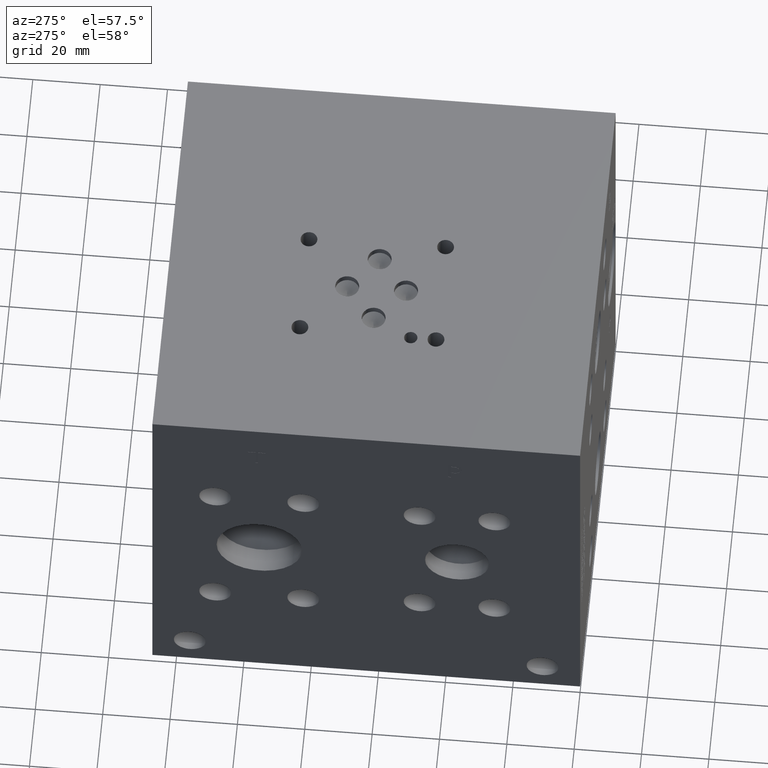
[diagram: clean part render]
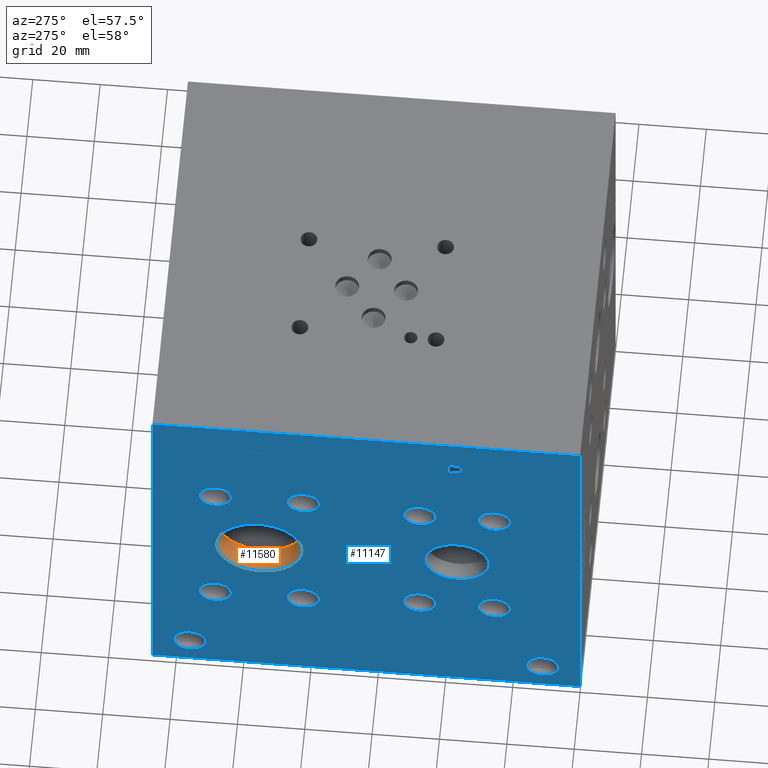
[diagram: same view with the hole feature highlighted: cylindrical wall and planar end face, labeled with their STEP entity ids]
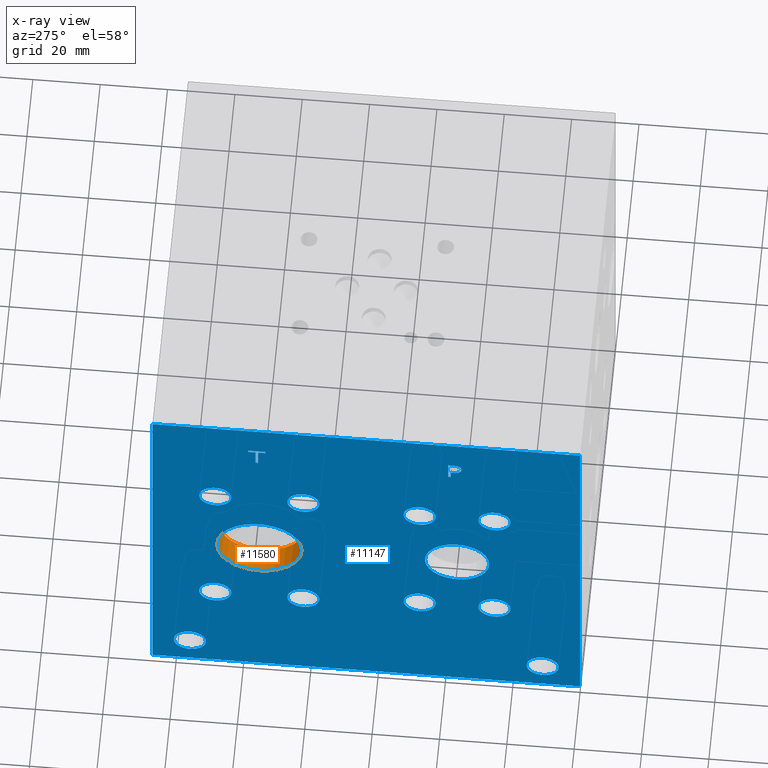
[diagram: x-ray of the same camera — body ghosted, the hole faces saturated]
A machine part, auxiliary view. The highlighted faces form one hole feature of diameter 25.4 mm: the cylindrical wall (entity #11580, orange) and its adjacent planar end face (entity #11147, blue) — they share a circular edge in the B-rep.
The next image is the same camera in x-ray (body ghosted, the hole faces saturated) — the bore reads through the body.
Wall:
#40=CYLINDRICAL_SURFACE('',#12218,12.7);
#183=CIRCLE('',#11788,12.7);
#184=CIRCLE('',#11789,12.7);
#275=CIRCLE('',#12216,12.7);
#276=CIRCLE('',#12217,12.7);
#1369=FACE_OUTER_BOUND('',#2057,.T.);
#2057=EDGE_LOOP('',(#9762,#9763,#9764,#9765,#9766,#9767));
#3205=LINE('',#19376,#4296);
#4296=VECTOR('',#14510,12.7);
#4530=VERTEX_POINT('',#15729);
#4531=VERTEX_POINT('',#15730);
#5324=VERTEX_POINT('',#19369);
#5325=VERTEX_POINT('',#19370);
#5701=EDGE_CURVE('',#4530,#4531,#183,.T.);
#5702=EDGE_CURVE('',#4531,#4530,#184,.T.);
#6867=EDGE_CURVE('',#5324,#5325,#275,.T.);
#6869=EDGE_CURVE('',#5325,#5324,#276,.T.);
#6870=EDGE_CURVE('',#4531,#5325,#3205,.T.);
#9762=ORIENTED_EDGE('',*,*,#5701,.F.);
#9763=ORIENTED_EDGE('',*,*,#5702,.F.);
#9764=ORIENTED_EDGE('',*,*,#6870,.T.);
#9765=ORIENTED_EDGE('',*,*,#6867,.F.);
#9766=ORIENTED_EDGE('',*,*,#6869,.F.);
#9767=ORIENTED_EDGE('',*,*,#6870,.F.);
#11580=ADVANCED_FACE('',(#1369),#40,.F.);
#11788=AXIS2_PLACEMENT_3D('',#15731,#12765,#12766);
#11789=AXIS2_PLACEMENT_3D('',#15732,#12767,#12768);
#12216=AXIS2_PLACEMENT_3D('',#19371,#14503,#14504);
#12217=AXIS2_PLACEMENT_3D('',#19374,#14506,#14507);
#12218=AXIS2_PLACEMENT_3D('',#19375,#14508,#14509);
#12765=DIRECTION('center_axis',(1.,0.,0.));
#12766=DIRECTION('ref_axis',(0.,1.,0.));
#12767=DIRECTION('center_axis',(1.,0.,0.));
#12768=DIRECTION('ref_axis',(0.,1.,0.));
#14503=DIRECTION('center_axis',(-1.,0.,0.));
#14504=DIRECTION('ref_axis',(0.,1.,0.));
#14506=DIRECTION('center_axis',(-1.,0.,0.));
#14507=DIRECTION('ref_axis',(0.,1.,0.));
#14508=DIRECTION('center_axis',(-1.,0.,0.));
#14509=DIRECTION('ref_axis',(0.,1.,0.));
#14510=DIRECTION('',(1.,0.,0.));
#15729=CARTESIAN_POINT('',(0.,107.95,63.5));
#15730=CARTESIAN_POINT('',(0.,82.55,63.5));
#15731=CARTESIAN_POINT('Origin',(0.,95.25,63.5));
#15732=CARTESIAN_POINT('Origin',(0.,95.25,63.5));
#19369=CARTESIAN_POINT('',(7.33235,107.95,63.5));
#19370=CARTESIAN_POINT('',(7.33235,82.55,63.5));
#19371=CARTESIAN_POINT('Origin',(7.33235,95.25,63.5));
#19374=CARTESIAN_POINT('Origin',(7.33235,95.25,63.5));
#19375=CARTESIAN_POINT('Origin',(3.666175,95.25,63.5));
#19376=CARTESIAN_POINT('',(3.666175,82.55,63.5));
End face:
#165=CIRCLE('',#11770,9.525);
#166=CIRCLE('',#11771,9.525);
#167=CIRCLE('',#11772,4.7625);
#168=CIRCLE('',#11773,4.7625);
#169=CIRCLE('',#11774,4.7625);
#170=CIRCLE('',#11775,4.7625);
#171=CIRCLE('',#11776,4.7625);
#172=CIRCLE('',#11777,4.7625);
#173=CIRCLE('',#11778,4.7625);
#174=CIRCLE('',#11779,4.7625);
#175=CIRCLE('',#11780,4.7625);
#176=CIRCLE('',#11781,4.7625);
#177=CIRCLE('',#11782,4.7625);
#178=CIRCLE('',#11783,4.7625);
#179=CIRCLE('',#11784,4.7625);
#180=CIRCLE('',#11785,4.7625);
#181=CIRCLE('',#11786,4.7625);
#182=CIRCLE('',#11787,4.7625);
#183=CIRCLE('',#11788,12.7);
#184=CIRCLE('',#11789,12.7);
#185=CIRCLE('',#11790,4.7625);
#186=CIRCLE('',#11791,4.7625);
#187=CIRCLE('',#11792,4.7625);
#188=CIRCLE('',#11793,4.7625);
#444=FACE_BOUND('',#1553,.T.);
#445=FACE_BOUND('',#1554,.T.);
#446=FACE_BOUND('',#1555,.T.);
#447=FACE_BOUND('',#1556,.T.);
#448=FACE_BOUND('',#1557,.T.);
#449=FACE_BOUND('',#1558,.T.);
#450=FACE_BOUND('',#1559,.T.);
#451=FACE_BOUND('',#1560,.T.);
#452=FACE_BOUND('',#1561,.T.);
#453=FACE_BOUND('',#1562,.T.);
#454=FACE_BOUND('',#1563,.T.);
#455=FACE_BOUND('',#1564,.T.);
#456=FACE_BOUND('',#1565,.T.);
#457=FACE_BOUND('',#1566,.T.);
#571=B_SPLINE_CURVE_WITH_KNOTS('',2,(#15587,#15588,#15589,#15590),
 .UNSPECIFIED.,.F.,.F.,(3,1,3),(0.,1.,2.),.UNSPECIFIED.);
#573=B_SPLINE_CURVE_WITH_KNOTS('',2,(#15608,#15609,#15610,#15611),
 .UNSPECIFIED.,.F.,.F.,(3,1,3),(0.,1.,2.),.UNSPECIFIED.);
#575=B_SPLINE_CURVE_WITH_KNOTS('',2,(#15657,#15658,#15659,#15660),
 .UNSPECIFIED.,.F.,.F.,(3,1,3),(0.,1.,2.),.UNSPECIFIED.);
#577=B_SPLINE_CURVE_WITH_KNOTS('',2,(#15675,#15676,#15677,#15678),
 .UNSPECIFIED.,.F.,.F.,(3,1,3),(0.,1.,2.),.UNSPECIFIED.);
#936=FACE_OUTER_BOUND('',#1552,.T.);
#1552=EDGE_LOOP('',(#7394,#7395,#7396,#7397));
#1553=EDGE_LOOP('',(#7398,#7399,#7400,#7401,#7402,#7403,#7404,#7405));
#1554=EDGE_LOOP('',(#7406,#7407));
#1555=EDGE_LOOP('',(#7408,#7409));
#1556=EDGE_LOOP('',(#7410,#7411));
#1557=EDGE_LOOP('',(#7412,#7413));
#1558=EDGE_LOOP('',(#7414,#7415));
#1559=EDGE_LOOP('',(#7416,#7417));
#1560=EDGE_LOOP('',(#7418,#7419));
#1561=EDGE_LOOP('',(#7420,#7421));
#1562=EDGE_LOOP('',(#7422,#7423));
#1563=EDGE_LOOP('',(#7424,#7425));
#1564=EDGE_LOOP('',(#7426,#7427));
#1565=EDGE_LOOP('',(#7428,#7429));
#1566=EDGE_LOOP('',(#7430,#7431,#7432,#7433,#7434,#7435,#7436,#7437,#7438));
#2262=LINE('',#15437,#3353);
#2266=LINE('',#15445,#3357);
#2269=LINE('',#15451,#3360);
#2272=LINE('',#15457,#3363);
#2275=LINE('',#15463,#3366);
#2278=LINE('',#15469,#3369);
#2281=LINE('',#15475,#3372);
#2284=LINE('',#15480,#3375);
#2302=LINE('',#15620,#3393);
#2305=LINE('',#15626,#3396);
#2308=LINE('',#15632,#3399);
#2311=LINE('',#15638,#3402);
#2314=LINE('',#15644,#3405);
#2318=LINE('',#15687,#3409);
#2319=LINE('',#15689,#3410);
#2320=LINE('',#15691,#3411);
#2321=LINE('',#15692,#3412);
#3353=VECTOR('',#12633,10.);
#3357=VECTOR('',#12639,10.);
#3360=VECTOR('',#12644,10.);
#3363=VECTOR('',#12649,10.);
#3366=VECTOR('',#12654,10.);
#3369=VECTOR('',#12659,10.);
#3372=VECTOR('',#12664,10.);
#3375=VECTOR('',#12669,10.);
#3393=VECTOR('',#12697,10.);
#3396=VECTOR('',#12702,10.);
#3399=VECTOR('',#12707,10.);
#3402=VECTOR('',#12712,10.);
#3405=VECTOR('',#12717,10.);
#3409=VECTOR('',#12725,10.);
#3410=VECTOR('',#12726,10.);
#3411=VECTOR('',#12727,10.);
#3412=VECTOR('',#12728,10.);
#4460=VERTEX_POINT('',#15435);
#4461=VERTEX_POINT('',#15436);
#4464=VERTEX_POINT('',#15444);
#4466=VERTEX_POINT('',#15450);
#4468=VERTEX_POINT('',#15456);
#4470=VERTEX_POINT('',#15462);
#4472=VERTEX_POINT('',#15468);
#4474=VERTEX_POINT('',#15474);
#4490=VERTEX_POINT('',#15585);
#4491=VERTEX_POINT('',#15586);
#4494=VERTEX_POINT('',#15607);
#4496=VERTEX_POINT('',#15619);
#4498=VERTEX_POINT('',#15625);
#4500=VERTEX_POINT('',#15631);
#4502=VERTEX_POINT('',#15637);
#4504=VERTEX_POINT('',#15643);
#4506=VERTEX_POINT('',#15656);
#4508=VERTEX_POINT('',#15685);
#4509=VERTEX_POINT('',#15686);
#4510=VERTEX_POINT('',#15688);
#4511=VERTEX_POINT('',#15690);
#4512=VERTEX_POINT('',#15693);
#4513=VERTEX_POINT('',#15694);
#4514=VERTEX_POINT('',#15697);
#4515=VERTEX_POINT('',#15698);
#4516=VERTEX_POINT('',#15701);
#4517=VERTEX_POINT('',#15702);
#4518=VERTEX_POINT('',#15705);
#4519=VERTEX_POINT('',#15706);
#4520=VERTEX_POINT('',#15709);
#4521=VERTEX_POINT('',#15710);
#4522=VERTEX_POINT('',#15713);
#4523=VERTEX_POINT('',#15714);
#4524=VERTEX_POINT('',#15717);
#4525=VERTEX_POINT('',#15718);
#4526=VERTEX_POINT('',#15721);
#4527=VERTEX_POINT('',#15722);
#4528=VERTEX_POINT('',#15725);
#4529=VERTEX_POINT('',#15726);
#4530=VERTEX_POINT('',#15729);
#4531=VERTEX_POINT('',#15730);
#4532=VERTEX_POINT('',#15733);
#4533=VERTEX_POINT('',#15734);
#4534=VERTEX_POINT('',#15737);
#4535=VERTEX_POINT('',#15738);
#5607=EDGE_CURVE('',#4460,#4461,#2262,.T.);
#5611=EDGE_CURVE('',#4464,#4460,#2266,.T.);
#5614=EDGE_CURVE('',#4466,#4464,#2269,.T.);
#5617=EDGE_CURVE('',#4468,#4466,#2272,.T.);
#5620=EDGE_CURVE('',#4470,#4468,#2275,.T.);
#5623=EDGE_CURVE('',#4472,#4470,#2278,.T.);
#5626=EDGE_CURVE('',#4474,#4472,#2281,.T.);
#5629=EDGE_CURVE('',#4461,#4474,#2284,.T.);
#5652=EDGE_CURVE('',#4490,#4491,#571,.T.);
#5656=EDGE_CURVE('',#4494,#4490,#573,.T.);
#5659=EDGE_CURVE('',#4496,#4494,#2302,.T.);
#5662=EDGE_CURVE('',#4498,#4496,#2305,.T.);
#5665=EDGE_CURVE('',#4500,#4498,#2308,.T.);
#5668=EDGE_CURVE('',#4502,#4500,#2311,.T.);
#5671=EDGE_CURVE('',#4504,#4502,#2314,.T.);
#5674=EDGE_CURVE('',#4506,#4504,#575,.T.);
#5677=EDGE_CURVE('',#4491,#4506,#577,.T.);
#5679=EDGE_CURVE('',#4508,#4509,#2318,.T.);
#5680=EDGE_CURVE('',#4509,#4510,#2319,.T.);
#5681=EDGE_CURVE('',#4511,#4510,#2320,.T.);
#5682=EDGE_CURVE('',#4508,#4511,#2321,.T.);
#5683=EDGE_CURVE('',#4512,#4513,#165,.T.);
#5684=EDGE_CURVE('',#4513,#4512,#166,.T.);
#5685=EDGE_CURVE('',#4514,#4515,#167,.T.);
#5686=EDGE_CURVE('',#4515,#4514,#168,.T.);
#5687=EDGE_CURVE('',#4516,#4517,#169,.T.);
#5688=EDGE_CURVE('',#4517,#4516,#170,.T.);
#5689=EDGE_CURVE('',#4518,#4519,#171,.T.);
#5690=EDGE_CURVE('',#4519,#4518,#172,.T.);
#5691=EDGE_CURVE('',#4520,#4521,#173,.T.);
#5692=EDGE_CURVE('',#4521,#4520,#174,.T.);
#5693=EDGE_CURVE('',#4522,#4523,#175,.T.);
#5694=EDGE_CURVE('',#4523,#4522,#176,.T.);
#5695=EDGE_CURVE('',#4524,#4525,#177,.T.);
#5696=EDGE_CURVE('',#4525,#4524,#178,.T.);
#5697=EDGE_CURVE('',#4526,#4527,#179,.T.);
#5698=EDGE_CURVE('',#4527,#4526,#180,.T.);
#5699=EDGE_CURVE('',#4528,#4529,#181,.T.);
#5700=EDGE_CURVE('',#4529,#4528,#182,.T.);
#5701=EDGE_CURVE('',#4530,#4531,#183,.T.);
#5702=EDGE_CURVE('',#4531,#4530,#184,.T.);
#5703=EDGE_CURVE('',#4532,#4533,#185,.T.);
#5704=EDGE_CURVE('',#4533,#4532,#186,.T.);
#5705=EDGE_CURVE('',#4534,#4535,#187,.T.);
#5706=EDGE_CURVE('',#4535,#4534,#188,.T.);
#7394=ORIENTED_EDGE('',*,*,#5679,.T.);
#7395=ORIENTED_EDGE('',*,*,#5680,.T.);
#7396=ORIENTED_EDGE('',*,*,#5681,.F.);
#7397=ORIENTED_EDGE('',*,*,#5682,.F.);
#7398=ORIENTED_EDGE('',*,*,#5607,.T.);
#7399=ORIENTED_EDGE('',*,*,#5629,.T.);
#7400=ORIENTED_EDGE('',*,*,#5626,.T.);
#7401=ORIENTED_EDGE('',*,*,#5623,.T.);
#7402=ORIENTED_EDGE('',*,*,#5620,.T.);
#7403=ORIENTED_EDGE('',*,*,#5617,.T.);
#7404=ORIENTED_EDGE('',*,*,#5614,.T.);
#7405=ORIENTED_EDGE('',*,*,#5611,.T.);
#7406=ORIENTED_EDGE('',*,*,#5683,.T.);
#7407=ORIENTED_EDGE('',*,*,#5684,.T.);
#7408=ORIENTED_EDGE('',*,*,#5685,.T.);
#7409=ORIENTED_EDGE('',*,*,#5686,.T.);
#7410=ORIENTED_EDGE('',*,*,#5687,.T.);
#7411=ORIENTED_EDGE('',*,*,#5688,.T.);
#7412=ORIENTED_EDGE('',*,*,#5689,.T.);
#7413=ORIENTED_EDGE('',*,*,#5690,.T.);
#7414=ORIENTED_EDGE('',*,*,#5691,.T.);
#7415=ORIENTED_EDGE('',*,*,#5692,.T.);
#7416=ORIENTED_EDGE('',*,*,#5693,.T.);
#7417=ORIENTED_EDGE('',*,*,#5694,.T.);
#7418=ORIENTED_EDGE('',*,*,#5695,.T.);
#7419=ORIENTED_EDGE('',*,*,#5696,.T.);
#7420=ORIENTED_EDGE('',*,*,#5697,.T.);
#7421=ORIENTED_EDGE('',*,*,#5698,.T.);
#7422=ORIENTED_EDGE('',*,*,#5699,.T.);
#7423=ORIENTED_EDGE('',*,*,#5700,.T.);
#7424=ORIENTED_EDGE('',*,*,#5701,.T.);
#7425=ORIENTED_EDGE('',*,*,#5702,.T.);
#7426=ORIENTED_EDGE('',*,*,#5703,.T.);
#7427=ORIENTED_EDGE('',*,*,#5704,.T.);
#7428=ORIENTED_EDGE('',*,*,#5705,.T.);
#7429=ORIENTED_EDGE('',*,*,#5706,.T.);
#7430=ORIENTED_EDGE('',*,*,#5652,.T.);
#7431=ORIENTED_EDGE('',*,*,#5677,.T.);
#7432=ORIENTED_EDGE('',*,*,#5674,.T.);
#7433=ORIENTED_EDGE('',*,*,#5671,.T.);
#7434=ORIENTED_EDGE('',*,*,#5668,.T.);
#7435=ORIENTED_EDGE('',*,*,#5665,.T.);
#7436=ORIENTED_EDGE('',*,*,#5662,.T.);
#7437=ORIENTED_EDGE('',*,*,#5659,.T.);
#7438=ORIENTED_EDGE('',*,*,#5656,.T.);
#10350=PLANE('',#11769);
#11147=ADVANCED_FACE('',(#936,#444,#445,#446,#447,#448,#449,#450,#451,#452,
#453,#454,#455,#456,#457),#10350,.T.);
#11769=AXIS2_PLACEMENT_3D('',#15684,#12723,#12724);
#11770=AXIS2_PLACEMENT_3D('',#15695,#12729,#12730);
#11771=AXIS2_PLACEMENT_3D('',#15696,#12731,#12732);
#11772=AXIS2_PLACEMENT_3D('',#15699,#12733,#12734);
#11773=AXIS2_PLACEMENT_3D('',#15700,#12735,#12736);
#11774=AXIS2_PLACEMENT_3D('',#15703,#12737,#12738);
#11775=AXIS2_PLACEMENT_3D('',#15704,#12739,#12740);
#11776=AXIS2_PLACEMENT_3D('',#15707,#12741,#12742);
#11777=AXIS2_PLACEMENT_3D('',#15708,#12743,#12744);
#11778=AXIS2_PLACEMENT_3D('',#15711,#12745,#12746);
#11779=AXIS2_PLACEMENT_3D('',#15712,#12747,#12748);
#11780=AXIS2_PLACEMENT_3D('',#15715,#12749,#12750);
#11781=AXIS2_PLACEMENT_3D('',#15716,#12751,#12752);
#11782=AXIS2_PLACEMENT_3D('',#15719,#12753,#12754);
#11783=AXIS2_PLACEMENT_3D('',#15720,#12755,#12756);
#11784=AXIS2_PLACEMENT_3D('',#15723,#12757,#12758);
#11785=AXIS2_PLACEMENT_3D('',#15724,#12759,#12760);
#11786=AXIS2_PLACEMENT_3D('',#15727,#12761,#12762);
#11787=AXIS2_PLACEMENT_3D('',#15728,#12763,#12764);
#11788=AXIS2_PLACEMENT_3D('',#15731,#12765,#12766);
#11789=AXIS2_PLACEMENT_3D('',#15732,#12767,#12768);
#11790=AXIS2_PLACEMENT_3D('',#15735,#12769,#12770);
#11791=AXIS2_PLACEMENT_3D('',#15736,#12771,#12772);
#11792=AXIS2_PLACEMENT_3D('',#15739,#12773,#12774);
#11793=AXIS2_PLACEMENT_3D('',#15740,#12775,#12776);
#12633=DIRECTION('',(0.,1.,2.1048822476866E-14));
#12639=DIRECTION('',(0.,3.17280044688051E-15,-1.));
#12644=DIRECTION('',(0.,1.,0.));
#12649=DIRECTION('',(0.,0.,-1.));
#12654=DIRECTION('',(0.,-1.,-3.47984565141734E-15));
#12659=DIRECTION('',(0.,0.,1.));
#12664=DIRECTION('',(0.,1.,0.));
#12669=DIRECTION('',(0.,-3.17280044688052E-15,1.));
#12697=DIRECTION('',(0.,-1.,-1.11355060845355E-14));
#12702=DIRECTION('',(0.,-4.19611858128767E-15,1.));
#12707=DIRECTION('',(0.,1.,0.));
#12712=DIRECTION('',(0.,3.75218139804998E-15,-1.));
#12717=DIRECTION('',(0.,1.,2.48345819151512E-14));
#12723=DIRECTION('center_axis',(-1.,0.,0.));
#12724=DIRECTION('ref_axis',(0.,-1.,0.));
#12725=DIRECTION('',(0.,-1.,0.));
#12726=DIRECTION('',(0.,0.,1.));
#12727=DIRECTION('',(0.,-1.,0.));
#12728=DIRECTION('',(0.,0.,1.));
#12729=DIRECTION('center_axis',(1.,0.,0.));
#12730=DIRECTION('ref_axis',(0.,1.,0.));
#12731=DIRECTION('center_axis',(1.,0.,0.));
#12732=DIRECTION('ref_axis',(0.,1.,0.));
#12733=DIRECTION('center_axis',(1.,0.,0.));
#12734=DIRECTION('ref_axis',(0.,1.,0.));
#12735=DIRECTION('center_axis',(1.,0.,0.));
#12736=DIRECTION('ref_axis',(0.,1.,0.));
#12737=DIRECTION('center_axis',(1.,0.,0.));
#12738=DIRECTION('ref_axis',(0.,1.,0.));
#12739=DIRECTION('center_axis',(1.,0.,0.));
#12740=DIRECTION('ref_axis',(0.,1.,0.));
#12741=DIRECTION('center_axis',(1.,0.,0.));
#12742=DIRECTION('ref_axis',(0.,1.,0.));
#12743=DIRECTION('center_axis',(1.,0.,0.));
#12744=DIRECTION('ref_axis',(0.,1.,0.));
#12745=DIRECTION('center_axis',(1.,0.,0.));
#12746=DIRECTION('ref_axis',(0.,1.,0.));
#12747=DIRECTION('center_axis',(1.,0.,0.));
#12748=DIRECTION('ref_axis',(0.,1.,0.));
#12749=DIRECTION('center_axis',(1.,0.,0.));
#12750=DIRECTION('ref_axis',(0.,1.,0.));
#12751=DIRECTION('center_axis',(1.,0.,0.));
#12752=DIRECTION('ref_axis',(0.,1.,0.));
#12753=DIRECTION('center_axis',(1.,0.,0.));
#12754=DIRECTION('ref_axis',(0.,1.,0.));
#12755=DIRECTION('center_axis',(1.,0.,0.));
#12756=DIRECTION('ref_axis',(0.,1.,0.));
#12757=DIRECTION('center_axis',(1.,0.,0.));
#12758=DIRECTION('ref_axis',(0.,1.,0.));
#12759=DIRECTION('center_axis',(1.,0.,0.));
#12760=DIRECTION('ref_axis',(0.,1.,0.));
#12761=DIRECTION('center_axis',(1.,0.,0.));
#12762=DIRECTION('ref_axis',(0.,1.,0.));
#12763=DIRECTION('center_axis',(1.,0.,0.));
#12764=DIRECTION('ref_axis',(0.,1.,0.));
#12765=DIRECTION('center_axis',(1.,0.,0.));
#12766=DIRECTION('ref_axis',(0.,1.,0.));
#12767=DIRECTION('center_axis',(1.,0.,0.));
#12768=DIRECTION('ref_axis',(0.,1.,0.));
#12769=DIRECTION('center_axis',(1.,0.,0.));
#12770=DIRECTION('ref_axis',(0.,1.,0.));
#12771=DIRECTION('center_axis',(1.,0.,0.));
#12772=DIRECTION('ref_axis',(0.,1.,0.));
#12773=DIRECTION('center_axis',(1.,0.,0.));
#12774=DIRECTION('ref_axis',(0.,1.,0.));
#12775=DIRECTION('center_axis',(1.,0.,0.));
#12776=DIRECTION('ref_axis',(0.,1.,0.));
#15435=CARTESIAN_POINT('',(0.,95.582834728547,109.982));
#15436=CARTESIAN_POINT('',(0.,96.4267569200865,109.982));
#15437=CARTESIAN_POINT('',(0.,111.291417364272,109.982));
#15444=CARTESIAN_POINT('',(0.,95.582834728547,115.580703319482));
#15445=CARTESIAN_POINT('',(0.,95.5828347285472,57.7903516597407));
#15450=CARTESIAN_POINT('',(0.,93.4524457816119,115.580703319482));
#15451=CARTESIAN_POINT('',(0.,110.226222890806,115.580703319482));
#15456=CARTESIAN_POINT('',(0.,93.4524457816119,116.331999904633));
#15457=CARTESIAN_POINT('',(0.,93.4524457816119,58.1659999523163));
#15462=CARTESIAN_POINT('',(0.,98.5571458670216,116.331999904633));
#15463=CARTESIAN_POINT('',(0.,112.778572933511,116.331999904633));
#15468=CARTESIAN_POINT('',(0.,98.5571458670216,115.580703319482));
#15469=CARTESIAN_POINT('',(0.,98.5571458670216,57.7903516597408));
#15474=CARTESIAN_POINT('',(0.,96.4267569200865,115.580703319482));
#15475=CARTESIAN_POINT('',(0.,111.713378460043,115.580703319482));
#15480=CARTESIAN_POINT('',(0.,96.4267569200867,54.991));
#15585=CARTESIAN_POINT('',(0.,35.9266327976406,115.935768143971));
#15586=CARTESIAN_POINT('',(0.,35.170190345468,114.417737372604));
#15587=CARTESIAN_POINT('Ctrl Pts',(0.,35.9266327976406,115.935768143971));
#15588=CARTESIAN_POINT('Ctrl Pts',(0.,35.5715679731514,115.693912393956));
#15589=CARTESIAN_POINT('Ctrl Pts',(0.,35.170190345468,114.947761675827));
#15590=CARTESIAN_POINT('Ctrl Pts',(0.,35.170190345468,114.417737372604));
#15607=CARTESIAN_POINT('',(0.,37.5887478456117,116.331999904633));
#15608=CARTESIAN_POINT('Ctrl Pts',(0.,37.5887478456117,116.331999904633));
#15609=CARTESIAN_POINT('Ctrl Pts',(0.,37.0227024732376,116.331999904633));
#15610=CARTESIAN_POINT('Ctrl Pts',(0.,36.2302389519139,116.146748691856));
#15611=CARTESIAN_POINT('Ctrl Pts',(0.,35.9266327976406,115.935768143971));
#15619=CARTESIAN_POINT('',(0.,39.1839666223022,116.331999904633));
#15620=CARTESIAN_POINT('',(0.,83.0919833111504,116.331999904633));
#15625=CARTESIAN_POINT('',(0.,39.1839666223022,109.982));
#15626=CARTESIAN_POINT('',(0.,39.1839666223024,54.9909999999998));
#15631=CARTESIAN_POINT('',(0.,38.3400444307627,109.982));
#15632=CARTESIAN_POINT('',(0.,82.6700222153814,109.982));
#15637=CARTESIAN_POINT('',(0.,38.3400444307627,112.349098829928));
#15638=CARTESIAN_POINT('',(0.,38.3400444307629,56.1745494149638));
#15643=CARTESIAN_POINT('',(0.,37.6247689147628,112.349098829928));
#15644=CARTESIAN_POINT('',(0.,82.31238445738,112.349098829929));
#15656=CARTESIAN_POINT('',(0.,35.7259439837989,113.00776980869));
#15657=CARTESIAN_POINT('Ctrl Pts',(0.,35.7259439837989,113.00776980869));
#15658=CARTESIAN_POINT('Ctrl Pts',(0.,36.0552794731802,112.683580186331));
#15659=CARTESIAN_POINT('Ctrl Pts',(0.,36.9455144679139,112.349098829928));
#15660=CARTESIAN_POINT('Ctrl Pts',(0.,37.6247689147628,112.349098829928));
#15675=CARTESIAN_POINT('Ctrl Pts',(0.,35.170190345468,114.417737372604));
#15676=CARTESIAN_POINT('Ctrl Pts',(0.,35.170190345468,114.006068010877));
#15677=CARTESIAN_POINT('Ctrl Pts',(0.,35.4635047656982,113.26506315977));
#15678=CARTESIAN_POINT('Ctrl Pts',(0.,35.7259439837989,113.00776980869));
#15684=CARTESIAN_POINT('Origin',(0.,127.,0.));
#15685=CARTESIAN_POINT('',(0.,127.,0.));
#15686=CARTESIAN_POINT('',(0.,0.,0.));
#15687=CARTESIAN_POINT('',(0.,127.,0.));
#15688=CARTESIAN_POINT('',(0.,0.,127.));
#15689=CARTESIAN_POINT('',(0.,0.,0.));
#15690=CARTESIAN_POINT('',(0.,127.,127.));
#15691=CARTESIAN_POINT('',(0.,127.,127.));
#15692=CARTESIAN_POINT('',(0.,127.,0.));
#15693=CARTESIAN_POINT('',(0.,46.0502,63.5));
#15694=CARTESIAN_POINT('',(0.,27.0002,63.5));
#15695=CARTESIAN_POINT('Origin',(0.,36.5252,63.5));
#15696=CARTESIAN_POINT('Origin',(0.,36.5252,63.5));
#15697=CARTESIAN_POINT('',(0.,113.0935,37.3126));
#15698=CARTESIAN_POINT('',(0.,103.5685,37.3126));
#15699=CARTESIAN_POINT('Origin',(0.,108.331,37.3126));
#15700=CARTESIAN_POINT('Origin',(0.,108.331,37.3126));
#15701=CARTESIAN_POINT('',(0.,86.9315,89.6874));
#15702=CARTESIAN_POINT('',(0.,77.4065,89.6874));
#15703=CARTESIAN_POINT('Origin',(0.,82.169,89.6874));
#15704=CARTESIAN_POINT('Origin',(0.,82.169,89.6874));
#15705=CARTESIAN_POINT('',(0.,52.3875,87.2998));
#15706=CARTESIAN_POINT('',(0.,42.8625,87.2998));
#15707=CARTESIAN_POINT('Origin',(0.,47.625,87.2998));
#15708=CARTESIAN_POINT('Origin',(0.,47.625,87.2998));
#15709=CARTESIAN_POINT('',(0.,30.1879,39.7002));
#15710=CARTESIAN_POINT('',(0.,20.6629,39.7002));
#15711=CARTESIAN_POINT('Origin',(0.,25.4254,39.7002));
#15712=CARTESIAN_POINT('Origin',(0.,25.4254,39.7002));
#15713=CARTESIAN_POINT('',(0.,30.1879,87.2998));
#15714=CARTESIAN_POINT('',(0.,20.6629,87.2998));
#15715=CARTESIAN_POINT('Origin',(0.,25.4254,87.2998));
#15716=CARTESIAN_POINT('Origin',(0.,25.4254,87.2998));
#15717=CARTESIAN_POINT('',(0.,52.3875,39.7002));
#15718=CARTESIAN_POINT('',(0.,42.8625,39.7002));
#15719=CARTESIAN_POINT('Origin',(0.,47.625,39.7002));
#15720=CARTESIAN_POINT('Origin',(0.,47.625,39.7002));
#15721=CARTESIAN_POINT('',(0.,113.0935023,89.69248));
#15722=CARTESIAN_POINT('',(0.,103.5685023,89.69248));
#15723=CARTESIAN_POINT('Origin',(0.,108.3310023,89.69248));
#15724=CARTESIAN_POINT('Origin',(0.,108.3310023,89.69248));
#15725=CARTESIAN_POINT('',(0.,86.9315,37.30752));
#15726=CARTESIAN_POINT('',(0.,77.4065,37.30752));
#15727=CARTESIAN_POINT('Origin',(0.,82.169,37.30752));
#15728=CARTESIAN_POINT('Origin',(0.,82.169,37.30752));
#15729=CARTESIAN_POINT('',(0.,107.95,63.5));
#15730=CARTESIAN_POINT('',(0.,82.55,63.5));
#15731=CARTESIAN_POINT('Origin',(0.,95.25,63.5));
#15732=CARTESIAN_POINT('Origin',(0.,95.25,63.5));
#15733=CARTESIAN_POINT('',(0.,120.6373,9.52500000000001));
#15734=CARTESIAN_POINT('',(0.,111.1123,9.52500000000001));
#15735=CARTESIAN_POINT('Origin',(0.,115.8748,9.52500000000001));
#15736=CARTESIAN_POINT('Origin',(0.,115.8748,9.52500000000001));
#15737=CARTESIAN_POINT('',(0.,15.8877,9.52500000000001));
#15738=CARTESIAN_POINT('',(0.,6.3627,9.52500000000001));
#15739=CARTESIAN_POINT('Origin',(0.,11.1252,9.52500000000001));
#15740=CARTESIAN_POINT('Origin',(0.,11.1252,9.52500000000001));